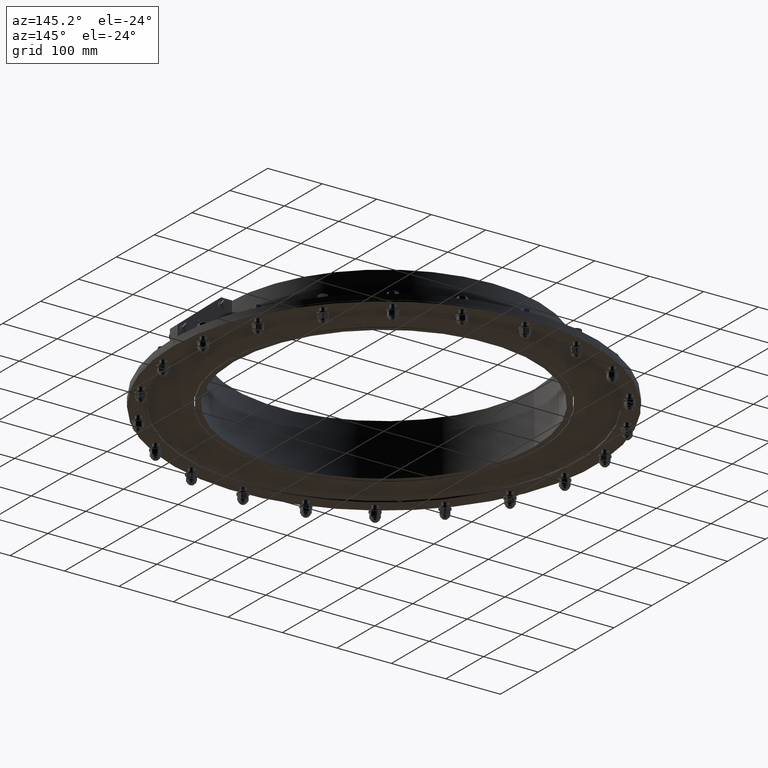
[diagram: clean part render]
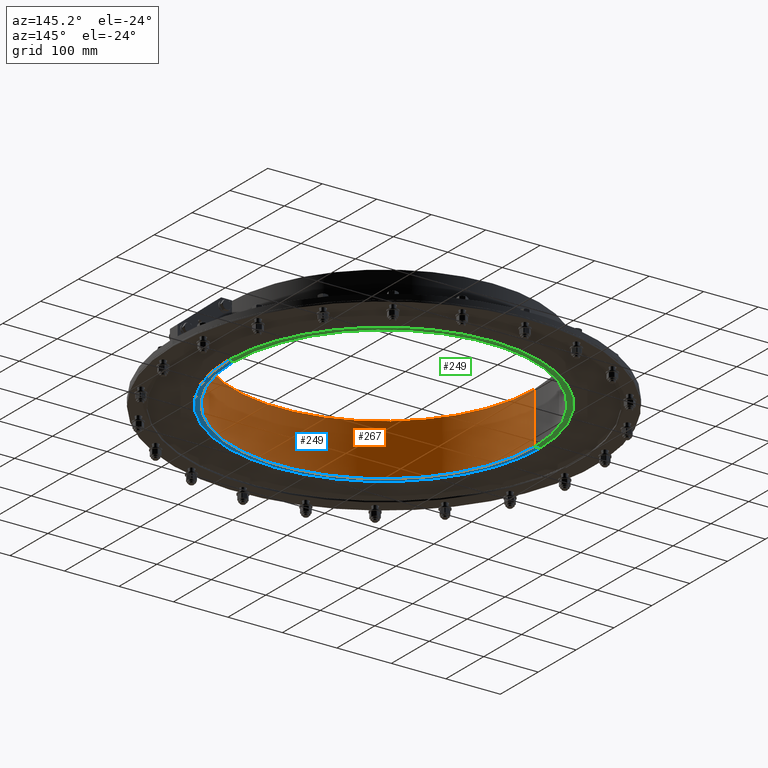
[diagram: same view with three faces highlighted in distinct colors, each labeled with its STEP entity id]
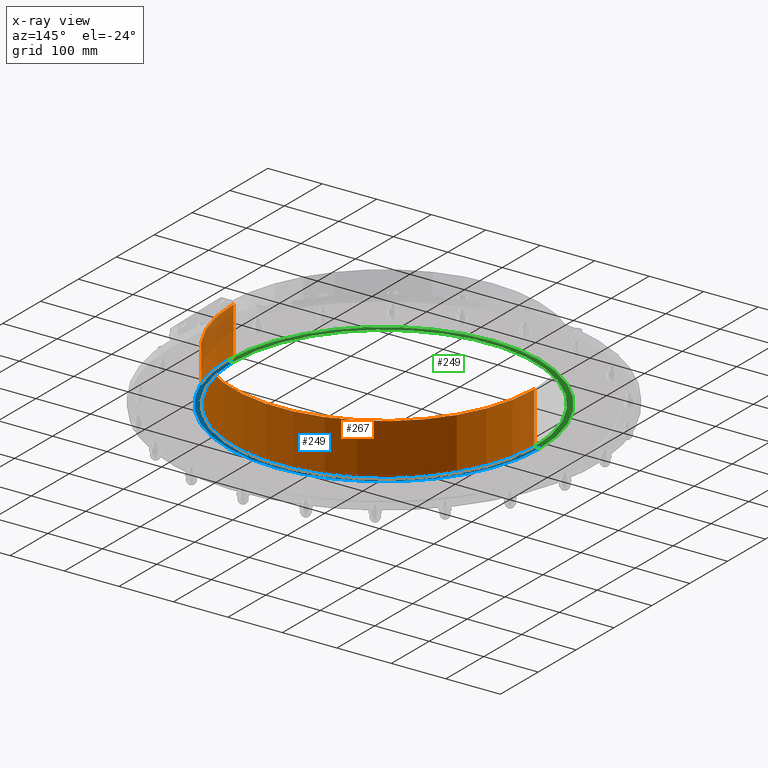
[diagram: x-ray of the same camera — body ghosted, the three highlighted faces saturated]
A machine part, auxiliary view with three faces highlighted in distinct colors.
The next image is the same camera in x-ray (body ghosted, the three faces saturated) — at least one of them is partly hidden behind the body in this view.
Their STEP definitions:

[orange] entity #267 — the highlighted cylindrical surface (partial cylindrical patch) has radius 276 mm, axis along (0, 0, 1).
#161=CARTESIAN_POINT('',(275.9999275362224,0.2,95.0));
#162=VERTEX_POINT('',#161);
#169=CARTESIAN_POINT('',(275.9999275362224,0.2,0.0));
#170=VERTEX_POINT('',#169);
#171=CARTESIAN_POINT('',(275.9999275362224,0.2,0.0));
#172=DIRECTION('',(0.0,0.0,1.0));
#173=VECTOR('',#172,95.0);
#174=LINE('',#171,#173);
#175=EDGE_CURVE('',#170,#162,#174,.T.);
#201=CARTESIAN_POINT('',(-275.9999275362224,0.2,0.0));
#202=VERTEX_POINT('',#201);
#209=CARTESIAN_POINT('',(-275.9999275362224,0.2,95.0));
#210=VERTEX_POINT('',#209);
#211=CARTESIAN_POINT('',(-275.9999275362224,0.2,95.0));
#212=DIRECTION('',(0.0,0.0,-1.0));
#213=VECTOR('',#212,95.0);
#214=LINE('',#211,#213);
#215=EDGE_CURVE('',#210,#202,#214,.T.);
#240=CARTESIAN_POINT('',(0.0,0.0,0.0));
#241=DIRECTION('',(0.0,0.0,1.0));
#242=DIRECTION('',(-1.0,0.0,0.0));
#243=AXIS2_PLACEMENT_3D('',#240,#241,#242);
#244=CIRCLE('',#243,276.0);
#245=EDGE_CURVE('',#170,#202,#244,.T.);
#250=CARTESIAN_POINT('',(0.0,0.0,0.0));
#251=DIRECTION('',(0.0,0.0,1.0));
#252=DIRECTION('',(-1.0,0.0,0.0));
#253=AXIS2_PLACEMENT_3D('',#250,#251,#252);
#254=CYLINDRICAL_SURFACE('',#253,276.0);
#255=ORIENTED_EDGE('',*,*,#215,.T.);
#256=ORIENTED_EDGE('',*,*,#245,.F.);
#257=ORIENTED_EDGE('',*,*,#175,.T.);
#258=CARTESIAN_POINT('',(0.0,0.0,95.0));
#259=DIRECTION('',(0.0,0.0,-1.0));
#260=DIRECTION('',(-1.0,0.0,0.0));
#261=AXIS2_PLACEMENT_3D('',#258,#259,#260);
#262=CIRCLE('',#261,276.0);
#263=EDGE_CURVE('',#210,#162,#262,.T.);
#264=ORIENTED_EDGE('',*,*,#263,.F.);
#265=EDGE_LOOP('',(#255,#256,#257,#264));
#266=FACE_OUTER_BOUND('',#265,.T.);
#267=ADVANCED_FACE('',(#266),#254,.F.);

[blue] entity #249 — the highlighted planar face has unit normal (-0, -0, -1).
#153=CARTESIAN_POINT('',(285.99993006992156,0.2,0.0));
#154=VERTEX_POINT('',#153);
#169=CARTESIAN_POINT('',(275.9999275362224,0.2,0.0));
#170=VERTEX_POINT('',#169);
#177=CARTESIAN_POINT('',(285.99993006992156,0.2,0.0));
#178=DIRECTION('',(-1.0,0.0,0.0));
#179=VECTOR('',#178,10.00000253369916);
#180=LINE('',#177,#179);
#181=EDGE_CURVE('',#154,#170,#180,.T.);
#191=CARTESIAN_POINT('',(-285.99993006992156,0.2,0.0));
#192=VERTEX_POINT('',#191);
#201=CARTESIAN_POINT('',(-275.9999275362224,0.2,0.0));
#202=VERTEX_POINT('',#201);
#203=CARTESIAN_POINT('',(-275.9999275362224,0.2,0.0));
#204=DIRECTION('',(-1.0,0.0,0.0));
#205=VECTOR('',#204,10.00000253369916);
#206=LINE('',#203,#205);
#207=EDGE_CURVE('',#202,#192,#206,.T.);
#226=CARTESIAN_POINT('',(0.0,0.0,0.0));
#227=DIRECTION('',(0.0,0.0,-1.0));
#228=DIRECTION('',(-1.0,0.0,0.0));
#229=AXIS2_PLACEMENT_3D('',#226,#227,#228);
#230=PLANE('',#229);
#231=ORIENTED_EDGE('',*,*,#207,.T.);
#232=CARTESIAN_POINT('',(0.0,0.0,0.0));
#233=DIRECTION('',(0.0,0.0,-1.0));
#234=DIRECTION('',(-1.0,0.0,0.0));
#235=AXIS2_PLACEMENT_3D('',#232,#233,#234);
#236=CIRCLE('',#235,286.0);
#237=EDGE_CURVE('',#192,#154,#236,.T.);
#238=ORIENTED_EDGE('',*,*,#237,.T.);
#239=ORIENTED_EDGE('',*,*,#181,.T.);
#240=CARTESIAN_POINT('',(0.0,0.0,0.0));
#241=DIRECTION('',(0.0,0.0,1.0));
#242=DIRECTION('',(-1.0,0.0,0.0));
#243=AXIS2_PLACEMENT_3D('',#240,#241,#242);
#244=CIRCLE('',#243,276.0);
#245=EDGE_CURVE('',#170,#202,#244,.T.);
#246=ORIENTED_EDGE('',*,*,#245,.T.);
#247=EDGE_LOOP('',(#231,#238,#239,#246));
#248=FACE_OUTER_BOUND('',#247,.T.);
#249=ADVANCED_FACE('',(#248),#230,.T.);

[green] entity #249 — the highlighted planar face has unit normal (0, 0, -1).
#153=CARTESIAN_POINT('',(285.99993006992156,0.2,0.0));
#154=VERTEX_POINT('',#153);
#169=CARTESIAN_POINT('',(275.9999275362224,0.2,0.0));
#170=VERTEX_POINT('',#169);
#177=CARTESIAN_POINT('',(285.99993006992156,0.2,0.0));
#178=DIRECTION('',(-1.0,0.0,0.0));
#179=VECTOR('',#178,10.00000253369916);
#180=LINE('',#177,#179);
#181=EDGE_CURVE('',#154,#170,#180,.T.);
#191=CARTESIAN_POINT('',(-285.99993006992156,0.2,0.0));
#192=VERTEX_POINT('',#191);
#201=CARTESIAN_POINT('',(-275.9999275362224,0.2,0.0));
#202=VERTEX_POINT('',#201);
#203=CARTESIAN_POINT('',(-275.9999275362224,0.2,0.0));
#204=DIRECTION('',(-1.0,0.0,0.0));
#205=VECTOR('',#204,10.00000253369916);
#206=LINE('',#203,#205);
#207=EDGE_CURVE('',#202,#192,#206,.T.);
#226=CARTESIAN_POINT('',(0.0,0.0,0.0));
#227=DIRECTION('',(0.0,0.0,-1.0));
#228=DIRECTION('',(-1.0,0.0,0.0));
#229=AXIS2_PLACEMENT_3D('',#226,#227,#228);
#230=PLANE('',#229);
#231=ORIENTED_EDGE('',*,*,#207,.T.);
#232=CARTESIAN_POINT('',(0.0,0.0,0.0));
#233=DIRECTION('',(0.0,0.0,-1.0));
#234=DIRECTION('',(-1.0,0.0,0.0));
#235=AXIS2_PLACEMENT_3D('',#232,#233,#234);
#236=CIRCLE('',#235,286.0);
#237=EDGE_CURVE('',#192,#154,#236,.T.);
#238=ORIENTED_EDGE('',*,*,#237,.T.);
#239=ORIENTED_EDGE('',*,*,#181,.T.);
#240=CARTESIAN_POINT('',(0.0,0.0,0.0));
#241=DIRECTION('',(0.0,0.0,1.0));
#242=DIRECTION('',(-1.0,0.0,0.0));
#243=AXIS2_PLACEMENT_3D('',#240,#241,#242);
#244=CIRCLE('',#243,276.0);
#245=EDGE_CURVE('',#170,#202,#244,.T.);
#246=ORIENTED_EDGE('',*,*,#245,.T.);
#247=EDGE_LOOP('',(#231,#238,#239,#246));
#248=FACE_OUTER_BOUND('',#247,.T.);
#249=ADVANCED_FACE('',(#248),#230,.T.);